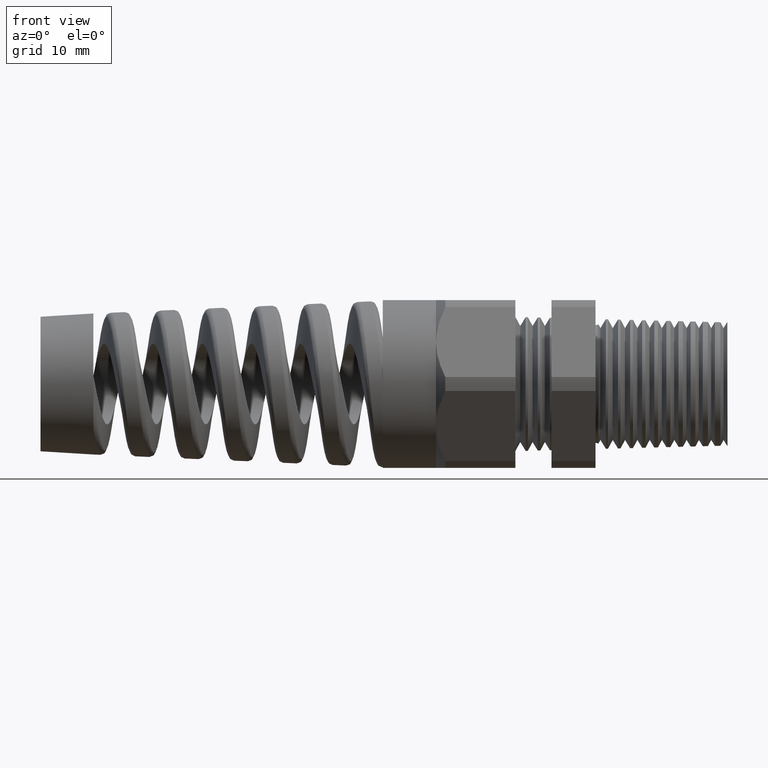
[diagram: clean part render]
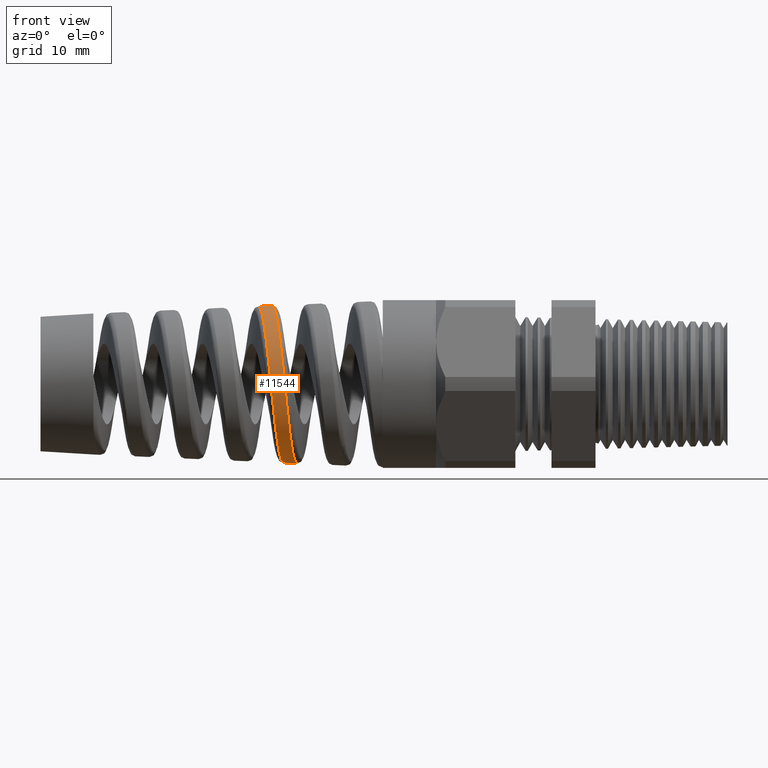
[diagram: same view with one face highlighted and labeled with its STEP entity id]
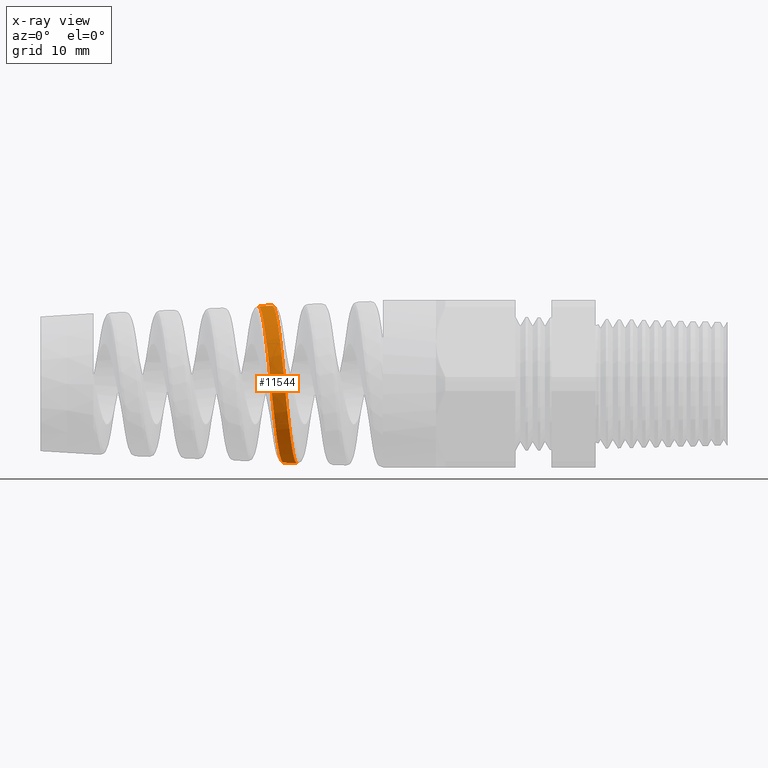
[diagram: x-ray of the same camera — body ghosted, the highlighted face saturated]
A machine part, front view. The second image highlights one B-rep face of the part: STEP entity #11544.
The next image is the same camera in x-ray: the body ghosted, the highlighted face saturated — about 0% of this face is hidden behind the body in this view.
In plain terms, the highlighted conical surface has half-angle 2.5 deg.
Its self-contained STEP definition (entity closure, byte-faithful):
#2274 = FACE_OUTER_BOUND ( 'NONE', #11546, .T. ) ;
#2296 = DIRECTION ( 'NONE',  ( 0.0000000000000000000, 0.0000000000000000000, -1.000000000000000000 ) ) ;
#2297 = DIRECTION ( 'NONE',  ( 1.000000000000000000, 0.0000000000000000000, 0.0000000000000000000 ) ) ;
#2298 = CARTESIAN_POINT ( 'NONE',  ( -1.179999999999999900, 0.0000000000000000000, 0.0000000000000000000 ) ) ;
#2299 = AXIS2_PLACEMENT_3D ( 'NONE', #2298, #2297, #2296 ) ;
#2300 = CONICAL_SURFACE ( 'NONE', #2299, 0.3750000000000001100, 0.04363323129985852100 ) ;
#2313 = CARTESIAN_POINT ( 'NONE',  ( -1.803601656619071300, -0.1126535690842940100, 0.3298216243140531000 ) ) ;
#2314 = CARTESIAN_POINT ( 'NONE',  ( -1.805893501458048200, -0.09083022146084748800, 0.3363741898626097500 ) ) ;
#2315 = CARTESIAN_POINT ( 'NONE',  ( -1.810505879178061900, -0.04602109934923850900, 0.3451663286584411600 ) ) ;
#2316 = CARTESIAN_POINT ( 'NONE',  ( -1.812842652368059000, -0.02283261713809473700, 0.3473694930849076100 ) ) ;
#2317 = CARTESIAN_POINT ( 'NONE',  ( -1.815145032800132200, 3.177253453485588300E-013, 0.3472689689842883300 ) ) ;
#2318 = B_SPLINE_CURVE_WITH_KNOTS ( 'NONE', 3,
 ( #2317, #2316, #2315, #2314, #2313, #2398, #2397, #2396, #2395, #2394, #2393, #2392, #2391, #2390, #2389, #2388, #2387, #2386, #2385, #2384, #2383, #2382, #2381, #2380, #2379, #2378, #2377, #2376, #2375, #2374, #2373, #2372, #2371, #2370, #2369, #2368, #2367, #2366, #2365, #2364, #2363, #2362, #2361, #2360, #2359, #2358 ),
 .UNSPECIFIED., .F., .F.,
 ( 4, 2, 2, 2, 2, 2, 2, 2, 2, 2, 2, 2, 2, 2, 2, 2, 2, 2, 2, 2, 2, 2, 4 ),
 ( 0.1798227287573119800, 0.1815925873739165100, 0.1833624459905210400, 0.1842473752988232900, 0.1851323046071255400, 0.1869021632237300700, 0.1886720218403346000, 0.1895569511486368800, 0.1904418804569391300, 0.1922117390735436600, 0.1930966683818459400, 0.1939815976901481900, 0.1957514563067527200, 0.1966363856150550000, 0.1975213149233572600, 0.1984062442316595100, 0.1992911735399617900, 0.2010610321565662900, 0.2028308907731708200, 0.2046007493897753500, 0.2054856786980776300, 0.2063706080063798800, 0.2081404666229844100 ),
 .UNSPECIFIED. ) ;
#2358 = CARTESIAN_POINT ( 'NONE',  ( -1.704982756190277700, -7.096772728620956600E-016, -0.3520787578540229300 ) ) ;
#2359 = CARTESIAN_POINT ( 'NONE',  ( -1.707279323247640200, -0.02308118080474378500, -0.3519784875708458200 ) ) ;
#2360 = CARTESIAN_POINT ( 'NONE',  ( -1.709538415157091200, -0.04578574172324856300, -0.3496317706281044100 ) ) ;
#2361 = CARTESIAN_POINT ( 'NONE',  ( -1.712943135369712000, -0.07929141667505168500, -0.3428666328220276200 ) ) ;
#2362 = CARTESIAN_POINT ( 'NONE',  ( -1.714080600619220000, -0.09036746928297620400, -0.3400668634364543700 ) ) ;
#2363 = CARTESIAN_POINT ( 'NONE',  ( -1.716371942988277100, -0.1123290409062196600, -0.3333520387255757300 ) ) ;
#2364 = CARTESIAN_POINT ( 'NONE',  ( -1.717528536773644100, -0.1232372550377447400, -0.3294205832953124900 ) ) ;
#2365 = CARTESIAN_POINT ( 'NONE',  ( -1.720963503062510100, -0.1549672300285177600, -0.3161945287702704300 ) ) ;
#2366 = CARTESIAN_POINT ( 'NONE',  ( -1.723230332956823700, -0.1750388072828249200, -0.3054223986800833100 ) ) ;
#2367 = CARTESIAN_POINT ( 'NONE',  ( -1.727791517965878700, -0.2130280279112694000, -0.2800010929925278400 ) ) ;
#2368 = CARTESIAN_POINT ( 'NONE',  ( -1.730102122797233300, -0.2310170003982603400, -0.2652171036084298700 ) ) ;
#2369 = CARTESIAN_POINT ( 'NONE',  ( -1.734657912617953800, -0.2632695287030447100, -0.2329346123212892000 ) ) ;
#2370 = CARTESIAN_POINT ( 'NONE',  ( -1.736926104458301300, -0.2777442859326915100, -0.2153271556248816700 ) ) ;
#2371 = CARTESIAN_POINT ( 'NONE',  ( -1.740379446163998100, -0.2969171841893505400, -0.1866704864986659100 ) ) ;
#2372 = CARTESIAN_POINT ( 'NONE',  ( -1.741539306031981500, -0.3028762856592636700, -0.1767346864921381700 ) ) ;
#2373 = CARTESIAN_POINT ( 'NONE',  ( -1.743834273058226400, -0.3136773210272637000, -0.1565423428792809300 ) ) ;
#2374 = CARTESIAN_POINT ( 'NONE',  ( -1.744975510546198800, -0.3185568820835239500, -0.1462332612043333600 ) ) ;
#2375 = CARTESIAN_POINT ( 'NONE',  ( -1.747255000855656200, -0.3272899331360369400, -0.1251967646536051900 ) ) ;
#2376 = CARTESIAN_POINT ( 'NONE',  ( -1.748393740354230700, -0.3311433727413283800, -0.1144693821081245300 ) ) ;
#2377 = CARTESIAN_POINT ( 'NONE',  ( -1.750681241095505000, -0.3378104984377775000, -0.09259212240108674600 ) ) ;
#2378 = CARTESIAN_POINT ( 'NONE',  ( -1.751835476616201400, -0.3406342962452061900, -0.08138831556106526600 ) ) ;
#2379 = CARTESIAN_POINT ( 'NONE',  ( -1.755292494645766600, -0.3474052584385407000, -0.04751322754614863100 ) ) ;
#2380 = CARTESIAN_POINT ( 'NONE',  ( -1.757566760657204700, -0.3496455966750518000, -0.02481727097083498800 ) ) ;
#2381 = CARTESIAN_POINT ( 'NONE',  ( -1.761000207364922900, -0.3496929093416353300, 0.009383999500394755700 ) ) ;
#2382 = CARTESIAN_POINT ( 'NONE',  ( -1.762148183255869200, -0.3491525518840764600, 0.02081085307815124700 ) ) ;
#2383 = CARTESIAN_POINT ( 'NONE',  ( -1.764460926328401000, -0.3469275801192314700, 0.04371797232294470000 ) ) ;
#2384 = CARTESIAN_POINT ( 'NONE',  ( -1.765621980915589500, -0.3452395736937887700, 0.05516025244638738500 ) ) ;
#2385 = CARTESIAN_POINT ( 'NONE',  ( -1.769066961576904400, -0.3385715433096900300, 0.08882459517641541600 ) ) ;
#2386 = CARTESIAN_POINT ( 'NONE',  ( -1.771339016688362200, -0.3319834184107238200, 0.1106292010329446900 ) ) ;
#2387 = CARTESIAN_POINT ( 'NONE',  ( -1.774783754385891500, -0.3188806063498872400, 0.1423690003514447000 ) ) ;
#2388 = CARTESIAN_POINT ( 'NONE',  ( -1.775944557927023200, -0.3139406235836078000, 0.1528426572022615600 ) ) ;
#2389 = CARTESIAN_POINT ( 'NONE',  ( -1.778254452483492900, -0.3031099659691844900, 0.1731287405771640100 ) ) ;
#2390 = CARTESIAN_POINT ( 'NONE',  ( -1.779402511350308000, -0.2972315074440684000, 0.1829354149705460200 ) ) ;
#2391 = CARTESIAN_POINT ( 'NONE',  ( -1.782842992302910800, -0.2782431805222536100, 0.2113707458486643300 ) ) ;
#2392 = CARTESIAN_POINT ( 'NONE',  ( -1.785132174757201800, -0.2637934005766937000, 0.2290241479473142100 ) ) ;
#2393 = CARTESIAN_POINT ( 'NONE',  ( -1.789775344148106600, -0.2311909577351496900, 0.2616265832855741400 ) ) ;
#2394 = CARTESIAN_POINT ( 'NONE',  ( -1.792070552357167800, -0.2134291081746564600, 0.2761582171595125500 ) ) ;
#2395 = CARTESIAN_POINT ( 'NONE',  ( -1.795507022704464100, -0.1850039787846474400, 0.2951190031879253300 ) ) ;
#2396 = CARTESIAN_POINT ( 'NONE',  ( -1.796653632072644900, -0.1752129703125876500, 0.3009798627280659300 ) ) ;
#2397 = CARTESIAN_POINT ( 'NONE',  ( -1.798961323173258600, -0.1549879184665151100, 0.3117644567304955800 ) ) ;
#2398 = CARTESIAN_POINT ( 'NONE',  ( -1.800128432327993800, -0.1444972233427687400, 0.3167078453407283800 ) ) ;
#2399 = CARTESIAN_POINT ( 'NONE',  ( -1.742390164511138200, -0.1133099067662048200, 0.3318229117209693900 ) ) ;
#2400 = CARTESIAN_POINT ( 'NONE',  ( -1.741225543239371100, -0.1243230025640358100, 0.3279101553835446200 ) ) ;
#2401 = CARTESIAN_POINT ( 'NONE',  ( -1.737764645704735800, -0.1563793168349293900, 0.3146958365406578600 ) ) ;
#2402 = CARTESIAN_POINT ( 'NONE',  ( -1.735481554460464300, -0.1766355019243542300, 0.3038965798077918300 ) ) ;
#2403 = CARTESIAN_POINT ( 'NONE',  ( -1.730891060121899900, -0.2149426711762508200, 0.2783765745369061700 ) ) ;
#2404 = CARTESIAN_POINT ( 'NONE',  ( -1.728568647384290900, -0.2330925077228328800, 0.2634998113186333100 ) ) ;
#2405 = CARTESIAN_POINT ( 'NONE',  ( -1.723995830417351900, -0.2656187432453710500, 0.2309787157584319000 ) ) ;
#2406 = CARTESIAN_POINT ( 'NONE',  ( -1.721724192680227800, -0.2801975046485287700, 0.2132378627229146500 ) ) ;
#2407 = CARTESIAN_POINT ( 'NONE',  ( -1.718268587564650600, -0.2994876497007052400, 0.1843703060389802200 ) ) ;
#2408 = CARTESIAN_POINT ( 'NONE',  ( -1.717106859915176200, -0.3054875898026511700, 0.1743488556163117800 ) ) ;
#2409 = CARTESIAN_POINT ( 'NONE',  ( -1.714807937294394300, -0.3163540229605555400, 0.1539834583257744500 ) ) ;
#2410 = CARTESIAN_POINT ( 'NONE',  ( -1.713664404488487900, -0.3212582915150142300, 0.1435878458781429900 ) ) ;
#2411 = CARTESIAN_POINT ( 'NONE',  ( -1.711380521740941200, -0.3300270986769949800, 0.1223790175774631900 ) ) ;
#2412 = CARTESIAN_POINT ( 'NONE',  ( -1.710240743994624800, -0.3338916145654494100, 0.1115657310053139900 ) ) ;
#2413 = CARTESIAN_POINT ( 'NONE',  ( -1.707953693028829500, -0.3405691303561185200, 0.08951797413544937400 ) ) ;
#2414 = CARTESIAN_POINT ( 'NONE',  ( -1.706801396084506300, -0.3433913604462745500, 0.07823466002664082600 ) ) ;
#2415 = CARTESIAN_POINT ( 'NONE',  ( -1.703348116996831000, -0.3501517384156372900, 0.04407317344233507200 ) ) ;
#2416 = CARTESIAN_POINT ( 'NONE',  ( -1.701080936002791000, -0.3523603179487009300, 0.02119662187233304100 ) ) ;
#2417 = CARTESIAN_POINT ( 'NONE',  ( -1.697661397430307600, -0.3523361130754593700, -0.01325968971192034400 ) ) ;
#2418 = CARTESIAN_POINT ( 'NONE',  ( -1.696518586452221200, -0.3517678659224457400, -0.02476889571138963400 ) ) ;
#2419 = CARTESIAN_POINT ( 'NONE',  ( -1.694216373417692500, -0.3494807558947283200, -0.04783508127310935600 ) ) ;
#2420 = CARTESIAN_POINT ( 'NONE',  ( -1.693059196219828300, -0.3477565561135085300, -0.05936840427398981000 ) ) ;
#2421 = CARTESIAN_POINT ( 'NONE',  ( -1.689624893225532200, -0.3409716950504734800, -0.09328492420925511800 ) ) ;
#2422 = CARTESIAN_POINT ( 'NONE',  ( -1.687362937917597000, -0.3342941382177155300, -0.1152423667580288300 ) ) ;
#2423 = CARTESIAN_POINT ( 'NONE',  ( -1.683941787752468500, -0.3210520317176962500, -0.1471926690930780400 ) ) ;
#2424 = CARTESIAN_POINT ( 'NONE',  ( -1.682790366800909700, -0.3160660539490139900, -0.1577317304743109400 ) ) ;
#2425 = CARTESIAN_POINT ( 'NONE',  ( -1.680497661676018300, -0.3051266661124763000, -0.1781725518463770100 ) ) ;
#2426 = CARTESIAN_POINT ( 'NONE',  ( -1.679359128239553200, -0.2991932680362227600, -0.1880526516611332200 ) ) ;
#2427 = CARTESIAN_POINT ( 'NONE',  ( -1.675949215468379900, -0.2800411910419853800, -0.2166986961977735200 ) ) ;
#2428 = CARTESIAN_POINT ( 'NONE',  ( -1.673683161043822100, -0.2654834145508912500, -0.2344797508611881100 ) ) ;
#2429 = CARTESIAN_POINT ( 'NONE',  ( -1.670234898637170000, -0.2408846970732478300, -0.2591124463699424600 ) ) ;
#2430 = CARTESIAN_POINT ( 'NONE',  ( -1.669083848137359300, -0.2322637684171852100, -0.2669304424136023600 ) ) ;
#2431 = CARTESIAN_POINT ( 'NONE',  ( -1.666806073958948300, -0.2144608893383372600, -0.2815585127357319600 ) ) ;
#2432 = CARTESIAN_POINT ( 'NONE',  ( -1.665673490827214800, -0.2052416548898344200, -0.2884067701490861700 ) ) ;
#2433 = CARTESIAN_POINT ( 'NONE',  ( -1.663408743855081300, -0.1861764159813913100, -0.3011825378161925900 ) ) ;
#2434 = CARTESIAN_POINT ( 'NONE',  ( -1.662276635184185100, -0.1763304111183010000, -0.3071100572061032400 ) ) ;
#2435 = CARTESIAN_POINT ( 'NONE',  ( -1.660000867127423300, -0.1560026894182726700, -0.3180291009546268300 ) ) ;
#2436 = CARTESIAN_POINT ( 'NONE',  ( -1.658850822200291800, -0.1454602929215268700, -0.3230436460956877500 ) ) ;
#2437 = CARTESIAN_POINT ( 'NONE',  ( -1.655422917315124300, -0.1133910656902852700, -0.3364025337142979600 ) ) ;
#2438 = CARTESIAN_POINT ( 'NONE',  ( -1.653164978424989600, -0.09142744784238317200, -0.3431139042729648400 ) ) ;
#2439 = CARTESIAN_POINT ( 'NONE',  ( -1.648622194700877000, -0.04636627099347189600, -0.3522455101314044800 ) ) ;
#2440 = CARTESIAN_POINT ( 'NONE',  ( -1.646317381550412900, -0.02302960350271101400, -0.3546401434268587900 ) ) ;
#2441 = CARTESIAN_POINT ( 'NONE',  ( -1.644049937241179000, -3.346558547480403300E-013, -0.3547391421834142400 ) ) ;
#2443 = B_SPLINE_CURVE_WITH_KNOTS ( 'NONE', 3,
 ( #2441, #2440, #2439, #2438, #2437, #2436, #2435, #2434, #2433, #2432, #2431, #2430, #2429, #2428, #2427, #2426, #2425, #2424, #2423, #2422, #2421, #2420, #2419, #2418, #2417, #2416, #2415, #2414, #2413, #2412, #2411, #2410, #2409, #2408, #2407, #2406, #2405, #2404, #2403, #2402, #2401, #2400, #2399, #2477, #2476, #2475, #2474, #2473 ),
 .UNSPECIFIED., .F., .F.,
 ( 4, 2, 2, 2, 2, 2, 2, 2, 2, 2, 2, 2, 2, 2, 2, 2, 2, 2, 2, 2, 2, 2, 2, 4 ),
 ( 0.1019361475634894000, 0.1037080407711329600, 0.1054799339787765400, 0.1063658805825983300, 0.1072518271864201100, 0.1081377737902418900, 0.1090237203940636900, 0.1107956136017072500, 0.1116815602055290400, 0.1125675068093508200, 0.1143394000169943900, 0.1152253466208161700, 0.1161112932246379500, 0.1178831864322815200, 0.1187691330361033000, 0.1196550796399250800, 0.1205410262437468700, 0.1214269728475686500, 0.1231988660552122100, 0.1249707592628557800, 0.1267426524704993500, 0.1276285990743211100, 0.1285145456781429100, 0.1302864388857864800 ),
 .UNSPECIFIED. ) ;
#2473 = CARTESIAN_POINT ( 'NONE',  ( -1.753884309869347300, 1.376809841258768400E-015, 0.3499436699107035300 ) ) ;
#2474 = CARTESIAN_POINT ( 'NONE',  ( -1.751561052247953200, -0.02324801958407396100, 0.3500451055290730300 ) ) ;
#2475 = CARTESIAN_POINT ( 'NONE',  ( -1.749272125790477700, -0.04621914388429029800, 0.3478393598418134100 ) ) ;
#2476 = CARTESIAN_POINT ( 'NONE',  ( -1.745839977276456300, -0.08000957031929383000, 0.3412282234677125900 ) ) ;
#2477 = CARTESIAN_POINT ( 'NONE',  ( -1.744694827306621200, -0.09117604417392279100, 0.3384700762607511500 ) ) ;
#3670 = EDGE_CURVE ( 'NONE', #3802, #3698, #6161, .T. ) ;
#3698 = VERTEX_POINT ( 'NONE', #6309 ) ;
#3802 = VERTEX_POINT ( 'NONE', #6406 ) ;
#3805 = VERTEX_POINT ( 'NONE', #6404 ) ;
#3911 = VERTEX_POINT ( 'NONE', #6663 ) ;
#3916 = EDGE_CURVE ( 'NONE', #3911, #3805, #6661, .T. ) ;
#6158 = DIRECTION ( 'NONE',  ( 0.9990482215818576900, 0.0000000000000000000, -0.04361938736533628500 ) ) ;
#6159 = VECTOR ( 'NONE', #6158, 39.37007874015748100 ) ;
#6160 = CARTESIAN_POINT ( 'NONE',  ( -1.179999999999999900, 0.0000000000000000000, -0.3750000000000001100 ) ) ;
#6161 = LINE ( 'NONE', #6160, #6159 ) ;
#6309 = CARTESIAN_POINT ( 'NONE',  ( -1.644049937241179000, -3.346558547480403300E-013, -0.3547391421834142400 ) ) ;
#6404 = CARTESIAN_POINT ( 'NONE',  ( -1.753884309869347300, 1.376809841258768400E-015, 0.3499436699107035300 ) ) ;
#6406 = CARTESIAN_POINT ( 'NONE',  ( -1.704982756190277700, -7.096772728620956600E-016, -0.3520787578540229300 ) ) ;
#6658 = DIRECTION ( 'NONE',  ( 0.9990482215818576900, 5.341834311772757900E-018, 0.04361938736533628500 ) ) ;
#6659 = VECTOR ( 'NONE', #6658, 39.37007874015748100 ) ;
#6660 = CARTESIAN_POINT ( 'NONE',  ( -1.179999999999999900, 4.592425496802576100E-017, 0.3750000000000001100 ) ) ;
#6661 = LINE ( 'NONE', #6660, #6659 ) ;
#6663 = CARTESIAN_POINT ( 'NONE',  ( -1.815145032800132200, 3.177253453485588300E-013, 0.3472689689842883300 ) ) ;
#11542 = ORIENTED_EDGE ( 'NONE', *, *, #11558, .T. ) ;
#11544 = ADVANCED_FACE ( 'NONE', ( #2274 ), #2300, .T. ) ;
#11546 = EDGE_LOOP ( 'NONE', ( #11549, #11548, #11547, #11542 ) ) ;
#11547 = ORIENTED_EDGE ( 'NONE', *, *, #3670, .T. ) ;
#11548 = ORIENTED_EDGE ( 'NONE', *, *, #11555, .T. ) ;
#11549 = ORIENTED_EDGE ( 'NONE', *, *, #3916, .F. ) ;
#11555 = EDGE_CURVE ( 'NONE', #3911, #3802, #2318, .T. ) ;
#11558 = EDGE_CURVE ( 'NONE', #3698, #3805, #2443, .T. ) ;